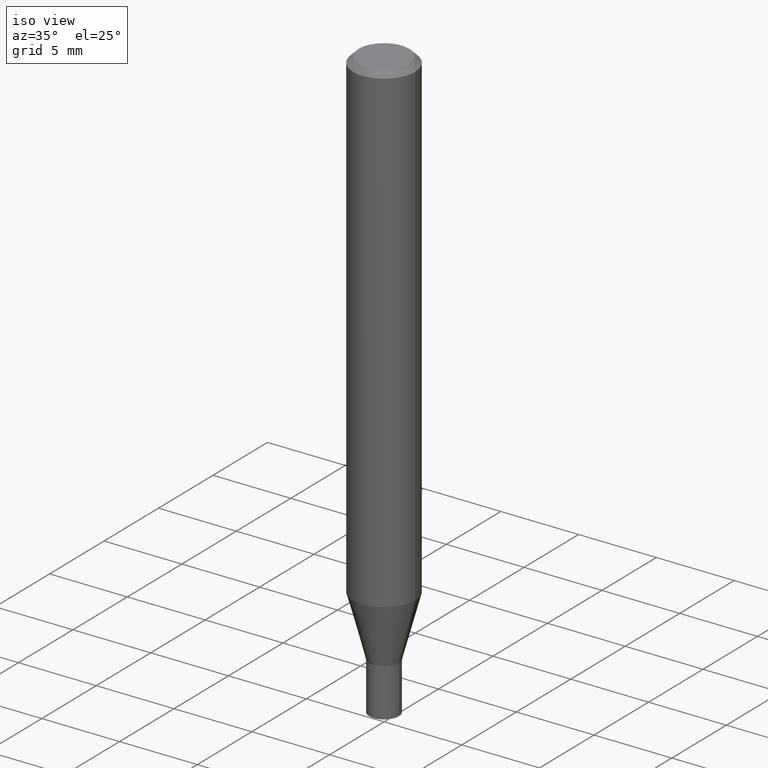
[diagram: clean part render]
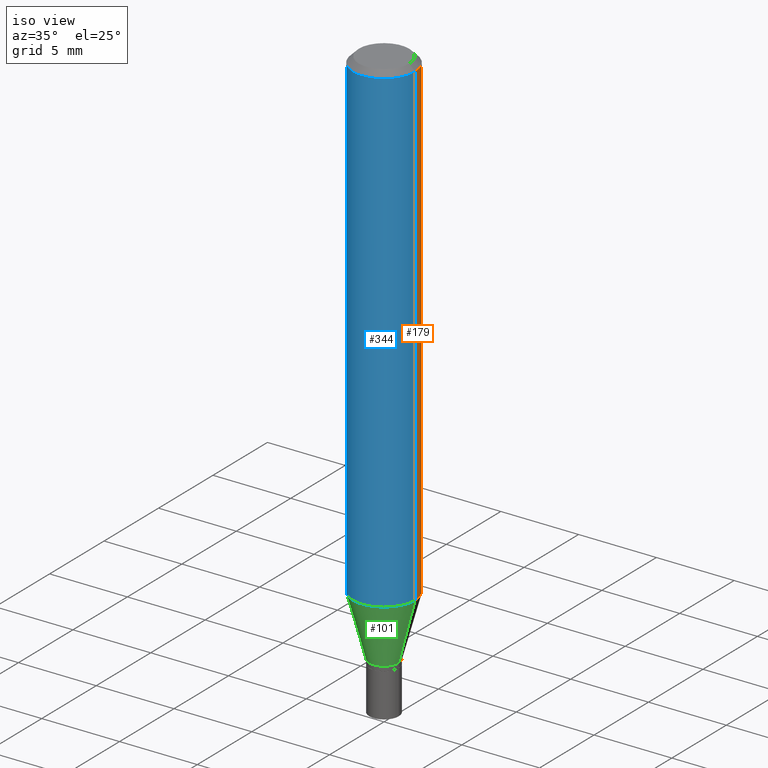
[diagram: same view with three faces highlighted in distinct colors, each labeled with its STEP entity id]
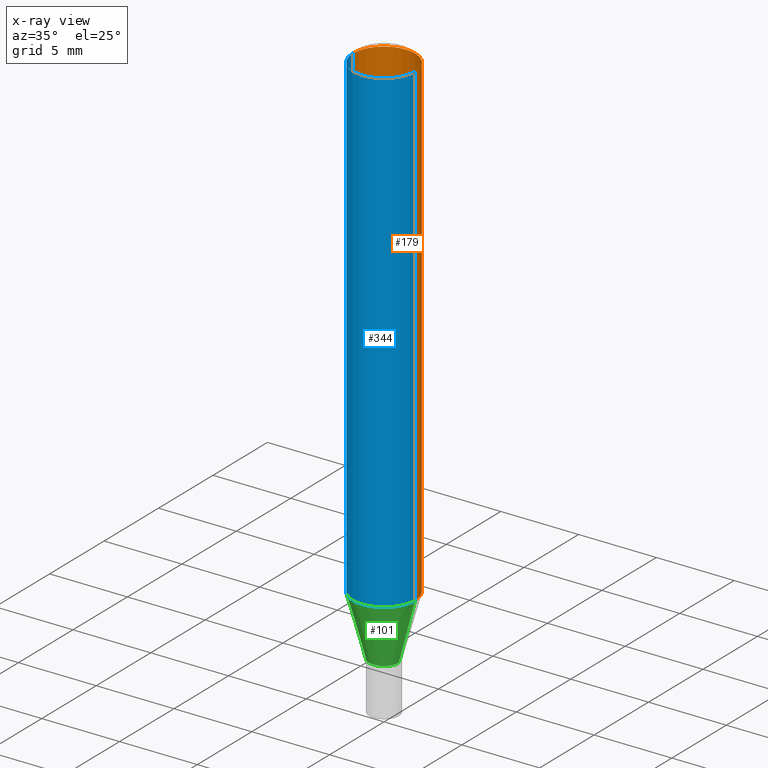
[diagram: x-ray of the same camera — body ghosted, the three highlighted faces saturated]
A machine part, iso view with three faces highlighted in distinct colors.
The next image is the same camera in x-ray (body ghosted, the three faces saturated) — at least one of them is partly hidden behind the body in this view.
Their STEP definitions:

[orange] entity #179 — the highlighted cylindrical surface (partial cylindrical patch) has radius 2.0002 mm, axis along (-0, 0, 1).
#8 = CIRCLE ( 'NONE', #70, 0.07875000000000000056 ) ;
#13 = CARTESIAN_POINT ( 'NONE',  ( -0.07875000000000000056, -3.712902429742301625E-15, -1.223679699107026897 ) ) ;
#24 = EDGE_CURVE ( 'NONE', #238, #457, #8, .T. ) ;
#33 = DIRECTION ( 'NONE',  ( -2.445468806185136877E-29, 3.491481338843145188E-15, 1.000000000000000000 ) ) ;
#52 = VERTEX_POINT ( 'NONE', #307 ) ;
#70 = AXIS2_PLACEMENT_3D ( 'NONE', #251, #276, #350 ) ;
#72 = CARTESIAN_POINT ( 'NONE',  ( 3.668203209277705088E-31, -5.237222008264718399E-17, -0.01499999999999999944 ) ) ;
#78 = ORIENTED_EDGE ( 'NONE', *, *, #80, .F. ) ;
#80 = EDGE_CURVE ( 'NONE', #238, #212, #416, .T. ) ;
#84 = ORIENTED_EDGE ( 'NONE', *, *, #24, .T. ) ;
#88 = CARTESIAN_POINT ( 'NONE',  ( 0.000000000000000000, 0.000000000000000000, 0.000000000000000000 ) ) ;
#92 = EDGE_LOOP ( 'NONE', ( #84, #255, #229, #78 ) ) ;
#100 = CARTESIAN_POINT ( 'NONE',  ( -0.07875000000000000056, 5.595524044110789003E-16, -3.873661383575737792E-30 ) ) ;
#123 = CYLINDRICAL_SURFACE ( 'NONE', #297, 0.07875000000000000056 ) ;
#146 = CARTESIAN_POINT ( 'NONE',  ( 0.07875000000000000056, -4.822363145021172984E-15, -1.223679699107026897 ) ) ;
#179 = ADVANCED_FACE ( 'NONE', ( #237 ), #123, .T. ) ;
#212 = VERTEX_POINT ( 'NONE', #445 ) ;
#229 = ORIENTED_EDGE ( 'NONE', *, *, #319, .F. ) ;
#237 = FACE_OUTER_BOUND ( 'NONE', #92, .T. ) ;
#238 = VERTEX_POINT ( 'NONE', #146 ) ;
#241 = DIRECTION ( 'NONE',  ( -2.445468806185136877E-29, 3.491481338843145188E-15, 1.000000000000000000 ) ) ;
#249 = LINE ( 'NONE', #100, #385 ) ;
#251 = CARTESIAN_POINT ( 'NONE',  ( 2.992470532928248490E-29, -4.272454834153379638E-15, -1.223679699107026897 ) ) ;
#255 = ORIENTED_EDGE ( 'NONE', *, *, #353, .T. ) ;
#272 = DIRECTION ( 'NONE',  ( 1.000000000000000000, -6.982962677686265922E-15, 4.876176775795935232E-29 ) ) ;
#276 = DIRECTION ( 'NONE',  ( -2.445468806185136597E-29, 3.491481338843145583E-15, 1.000000000000000000 ) ) ;
#297 = AXIS2_PLACEMENT_3D ( 'NONE', #88, #376, #272 ) ;
#307 = CARTESIAN_POINT ( 'NONE',  ( -0.07875000000000000056, -1.602861122706934557E-15, -0.01499999999999999944 ) ) ;
#319 = EDGE_CURVE ( 'NONE', #212, #52, #359, .T. ) ;
#321 = DIRECTION ( 'NONE',  ( 1.000000000000000000, -6.982962677686265922E-15, 0.000000000000000000 ) ) ;
#350 = DIRECTION ( 'NONE',  ( 1.000000000000000000, -6.982962677686261977E-15, 0.000000000000000000 ) ) ;
#353 = EDGE_CURVE ( 'NONE', #457, #52, #249, .T. ) ;
#359 = CIRCLE ( 'NONE', #391, 0.07875000000000000056 ) ;
#363 = VECTOR ( 'NONE', #33, 39.37007874015748143 ) ;
#369 = CARTESIAN_POINT ( 'NONE',  ( 0.07875000000000000056, -5.499083108677934443E-16, 3.839989210939299016E-30 ) ) ;
#376 = DIRECTION ( 'NONE',  ( -2.445468806185136597E-29, 3.491481338843145583E-15, 1.000000000000000000 ) ) ;
#384 = DIRECTION ( 'NONE',  ( -2.445468806185136597E-29, 3.491481338843145583E-15, 1.000000000000000000 ) ) ;
#385 = VECTOR ( 'NONE', #241, 39.37007874015748143 ) ;
#391 = AXIS2_PLACEMENT_3D ( 'NONE', #72, #384, #321 ) ;
#416 = LINE ( 'NONE', #369, #363 ) ;
#445 = CARTESIAN_POINT ( 'NONE',  ( 0.07875000000000000056, -6.022805309504406221E-16, -0.01499999999999999944 ) ) ;
#457 = VERTEX_POINT ( 'NONE', #13 ) ;

[blue] entity #344 — the highlighted cylindrical surface (partial cylindrical patch) has radius 2.0002 mm, axis along (-0, 0, 1).
#13 = CARTESIAN_POINT ( 'NONE',  ( -0.07875000000000000056, -3.712902429742301625E-15, -1.223679699107026897 ) ) ;
#30 = CARTESIAN_POINT ( 'NONE',  ( 2.992470532928248490E-29, -4.272454834153379638E-15, -1.223679699107026897 ) ) ;
#33 = DIRECTION ( 'NONE',  ( -2.445468806185136877E-29, 3.491481338843145188E-15, 1.000000000000000000 ) ) ;
#37 = AXIS2_PLACEMENT_3D ( 'NONE', #265, #282, #126 ) ;
#51 = ORIENTED_EDGE ( 'NONE', *, *, #286, .F. ) ;
#52 = VERTEX_POINT ( 'NONE', #307 ) ;
#80 = EDGE_CURVE ( 'NONE', #238, #212, #416, .T. ) ;
#97 = DIRECTION ( 'NONE',  ( 1.000000000000000000, -6.982962677686261977E-15, 0.000000000000000000 ) ) ;
#100 = CARTESIAN_POINT ( 'NONE',  ( -0.07875000000000000056, 5.595524044110789003E-16, -3.873661383575737792E-30 ) ) ;
#104 = CYLINDRICAL_SURFACE ( 'NONE', #234, 0.07875000000000000056 ) ;
#108 = FACE_OUTER_BOUND ( 'NONE', #253, .T. ) ;
#109 = EDGE_CURVE ( 'NONE', #457, #238, #250, .T. ) ;
#110 = ORIENTED_EDGE ( 'NONE', *, *, #80, .T. ) ;
#126 = DIRECTION ( 'NONE',  ( 1.000000000000000000, -6.982962677686265922E-15, 0.000000000000000000 ) ) ;
#144 = CIRCLE ( 'NONE', #37, 0.07875000000000000056 ) ;
#146 = CARTESIAN_POINT ( 'NONE',  ( 0.07875000000000000056, -4.822363145021172984E-15, -1.223679699107026897 ) ) ;
#193 = ORIENTED_EDGE ( 'NONE', *, *, #109, .T. ) ;
#212 = VERTEX_POINT ( 'NONE', #445 ) ;
#234 = AXIS2_PLACEMENT_3D ( 'NONE', #275, #278, #418 ) ;
#238 = VERTEX_POINT ( 'NONE', #146 ) ;
#241 = DIRECTION ( 'NONE',  ( -2.445468806185136877E-29, 3.491481338843145188E-15, 1.000000000000000000 ) ) ;
#249 = LINE ( 'NONE', #100, #385 ) ;
#250 = CIRCLE ( 'NONE', #316, 0.07875000000000000056 ) ;
#253 = EDGE_LOOP ( 'NONE', ( #374, #193, #110, #51 ) ) ;
#265 = CARTESIAN_POINT ( 'NONE',  ( 3.668203209277705088E-31, -5.237222008264718399E-17, -0.01499999999999999944 ) ) ;
#275 = CARTESIAN_POINT ( 'NONE',  ( 0.000000000000000000, 0.000000000000000000, 0.000000000000000000 ) ) ;
#278 = DIRECTION ( 'NONE',  ( -2.445468806185136597E-29, 3.491481338843145583E-15, 1.000000000000000000 ) ) ;
#282 = DIRECTION ( 'NONE',  ( -2.445468806185136597E-29, 3.491481338843145583E-15, 1.000000000000000000 ) ) ;
#286 = EDGE_CURVE ( 'NONE', #52, #212, #144, .T. ) ;
#307 = CARTESIAN_POINT ( 'NONE',  ( -0.07875000000000000056, -1.602861122706934557E-15, -0.01499999999999999944 ) ) ;
#316 = AXIS2_PLACEMENT_3D ( 'NONE', #30, #402, #97 ) ;
#344 = ADVANCED_FACE ( 'NONE', ( #108 ), #104, .T. ) ;
#353 = EDGE_CURVE ( 'NONE', #457, #52, #249, .T. ) ;
#363 = VECTOR ( 'NONE', #33, 39.37007874015748143 ) ;
#369 = CARTESIAN_POINT ( 'NONE',  ( 0.07875000000000000056, -5.499083108677934443E-16, 3.839989210939299016E-30 ) ) ;
#374 = ORIENTED_EDGE ( 'NONE', *, *, #353, .F. ) ;
#385 = VECTOR ( 'NONE', #241, 39.37007874015748143 ) ;
#402 = DIRECTION ( 'NONE',  ( -2.445468806185136597E-29, 3.491481338843145583E-15, 1.000000000000000000 ) ) ;
#416 = LINE ( 'NONE', #369, #363 ) ;
#418 = DIRECTION ( 'NONE',  ( 1.000000000000000000, -6.982962677686265922E-15, 4.876176775795935232E-29 ) ) ;
#445 = CARTESIAN_POINT ( 'NONE',  ( 0.07875000000000000056, -6.022805309504406221E-16, -0.01499999999999999944 ) ) ;
#457 = VERTEX_POINT ( 'NONE', #13 ) ;

[green] entity #101 — the highlighted conical surface has half-angle 15 deg.
#3 = ORIENTED_EDGE ( 'NONE', *, *, #277, .T. ) ;
#13 = CARTESIAN_POINT ( 'NONE',  ( -0.07875000000000000056, -3.712902429742301625E-15, -1.223679699107026897 ) ) ;
#30 = CARTESIAN_POINT ( 'NONE',  ( 2.992470532928248490E-29, -4.272454834153379638E-15, -1.223679699107026897 ) ) ;
#42 = CONICAL_SURFACE ( 'NONE', #458, 0.03739999999999991942, 0.2617993877991496854 ) ;
#64 = VECTOR ( 'NONE', #463, 39.37007874015748143 ) ;
#67 = EDGE_CURVE ( 'NONE', #259, #457, #206, .T. ) ;
#69 = LINE ( 'NONE', #245, #64 ) ;
#91 = DIRECTION ( 'NONE',  ( 1.000000000000000000, -6.982962677686265133E-15, 0.000000000000000000 ) ) ;
#96 = VERTEX_POINT ( 'NONE', #314 ) ;
#97 = DIRECTION ( 'NONE',  ( 1.000000000000000000, -6.982962677686261977E-15, 0.000000000000000000 ) ) ;
#98 = ORIENTED_EDGE ( 'NONE', *, *, #109, .F. ) ;
#101 = ADVANCED_FACE ( 'NONE', ( #453 ), #42, .T. ) ;
#109 = EDGE_CURVE ( 'NONE', #457, #238, #250, .T. ) ;
#117 = DIRECTION ( 'NONE',  ( -2.445468806185136597E-29, 3.491481338843145583E-15, 1.000000000000000000 ) ) ;
#118 = DIRECTION ( 'NONE',  ( 1.000000000000000000, -6.982962677686265133E-15, 0.000000000000000000 ) ) ;
#121 = DIRECTION ( 'NONE',  ( -0.2588190451025210170, 5.211531920934547886E-15, 0.9659258262890682012 ) ) ;
#132 = ORIENTED_EDGE ( 'NONE', *, *, #67, .F. ) ;
#134 = VECTOR ( 'NONE', #121, 39.37007874015748143 ) ;
#146 = CARTESIAN_POINT ( 'NONE',  ( 0.07875000000000000056, -4.822363145021172984E-15, -1.223679699107026897 ) ) ;
#206 = LINE ( 'NONE', #235, #134 ) ;
#214 = ORIENTED_EDGE ( 'NONE', *, *, #357, .T. ) ;
#223 = EDGE_LOOP ( 'NONE', ( #132, #3, #214, #98 ) ) ;
#228 = CARTESIAN_POINT ( 'NONE',  ( 3.369856014923118508E-29, -4.811261284925855529E-15, -1.378000000000000114 ) ) ;
#235 = CARTESIAN_POINT ( 'NONE',  ( -0.03739999999999991942, -4.545518301751578928E-15, -1.378000000000000114 ) ) ;
#238 = VERTEX_POINT ( 'NONE', #146 ) ;
#245 = CARTESIAN_POINT ( 'NONE',  ( 0.03739999999999991942, -5.072424089071321140E-15, -1.378000000000000114 ) ) ;
#250 = CIRCLE ( 'NONE', #316, 0.07875000000000000056 ) ;
#259 = VERTEX_POINT ( 'NONE', #343 ) ;
#277 = EDGE_CURVE ( 'NONE', #259, #96, #351, .T. ) ;
#305 = CARTESIAN_POINT ( 'NONE',  ( 3.369856014923118508E-29, -4.811261284925855529E-15, -1.378000000000000114 ) ) ;
#314 = CARTESIAN_POINT ( 'NONE',  ( 0.03739999999999991942, -5.072424089071321140E-15, -1.378000000000000114 ) ) ;
#316 = AXIS2_PLACEMENT_3D ( 'NONE', #30, #402, #97 ) ;
#343 = CARTESIAN_POINT ( 'NONE',  ( -0.03739999999999991942, -4.129210365746939882E-15, -1.378000000000000114 ) ) ;
#351 = CIRCLE ( 'NONE', #465, 0.03739999999999991942 ) ;
#357 = EDGE_CURVE ( 'NONE', #96, #238, #69, .T. ) ;
#402 = DIRECTION ( 'NONE',  ( -2.445468806185136597E-29, 3.491481338843145583E-15, 1.000000000000000000 ) ) ;
#446 = DIRECTION ( 'NONE',  ( -2.445468806185136597E-29, 3.491481338843145583E-15, 1.000000000000000000 ) ) ;
#453 = FACE_OUTER_BOUND ( 'NONE', #223, .T. ) ;
#457 = VERTEX_POINT ( 'NONE', #13 ) ;
#458 = AXIS2_PLACEMENT_3D ( 'NONE', #228, #117, #91 ) ;
#463 = DIRECTION ( 'NONE',  ( 0.2588190451025210170, 1.565188264969624531E-15, 0.9659258262890682012 ) ) ;
#465 = AXIS2_PLACEMENT_3D ( 'NONE', #305, #446, #118 ) ;